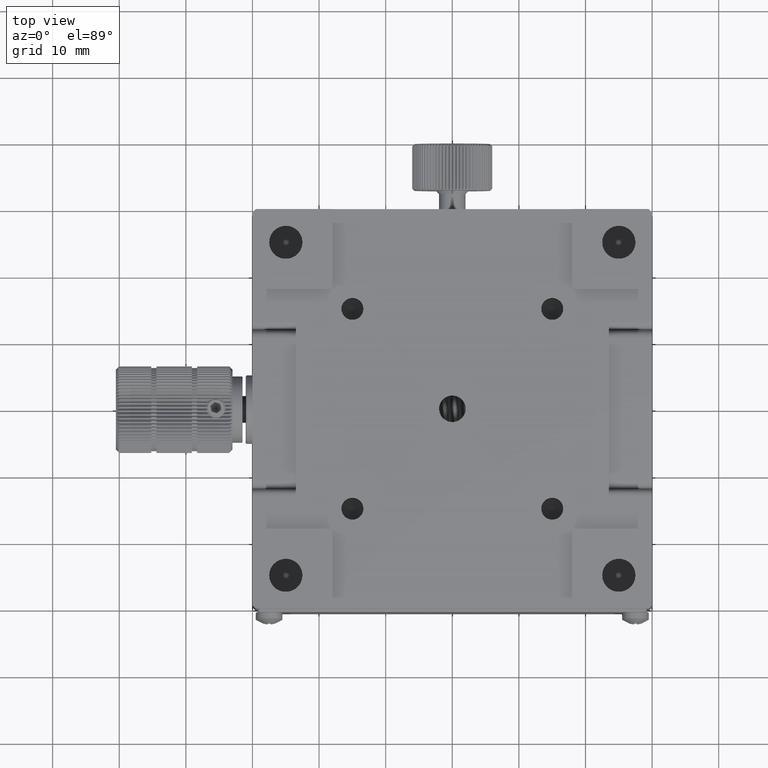
[diagram: clean part render]
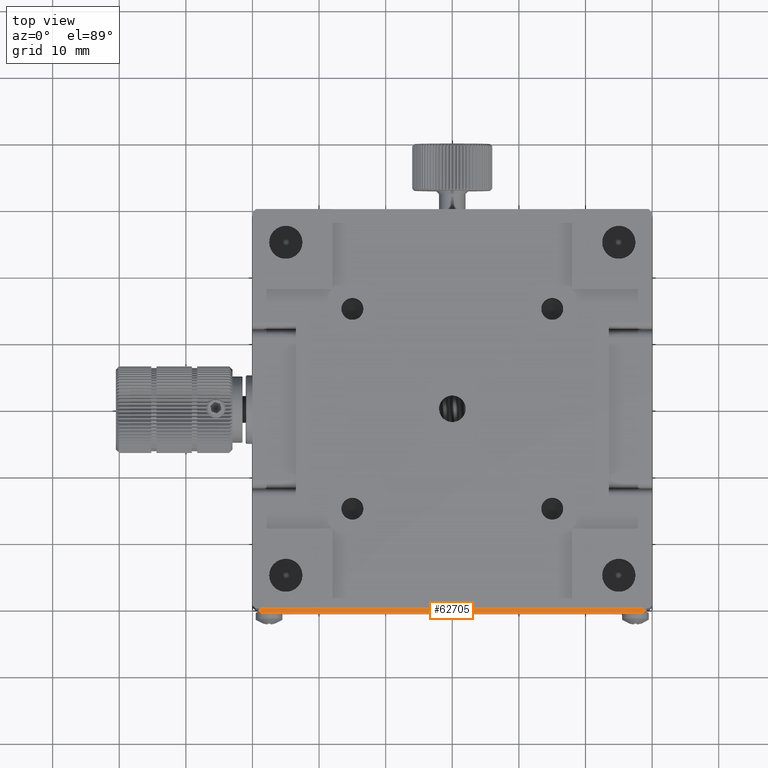
[diagram: same view with one face highlighted and labeled with its STEP entity id]
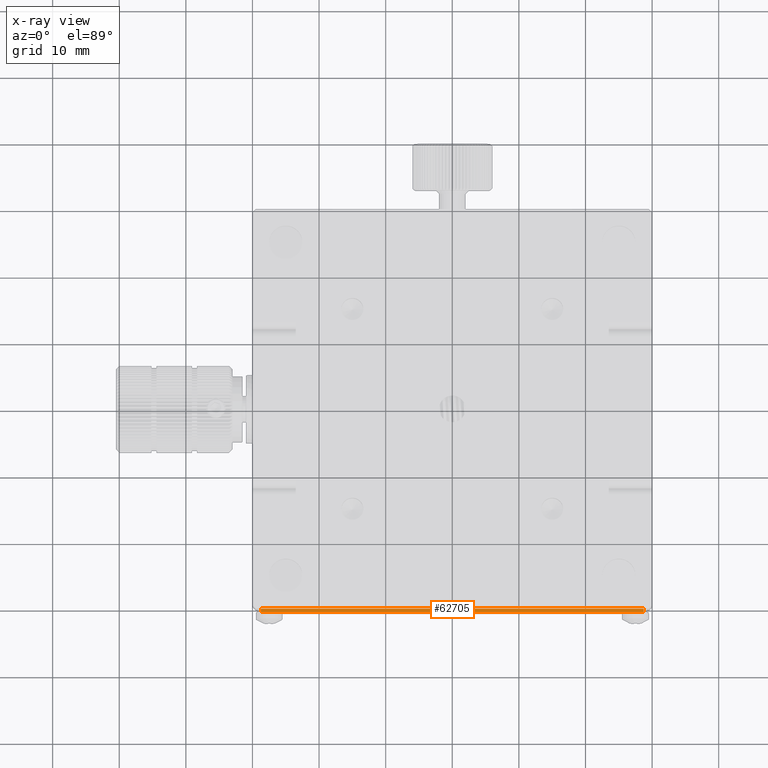
[diagram: x-ray of the same camera — body ghosted, the highlighted face saturated]
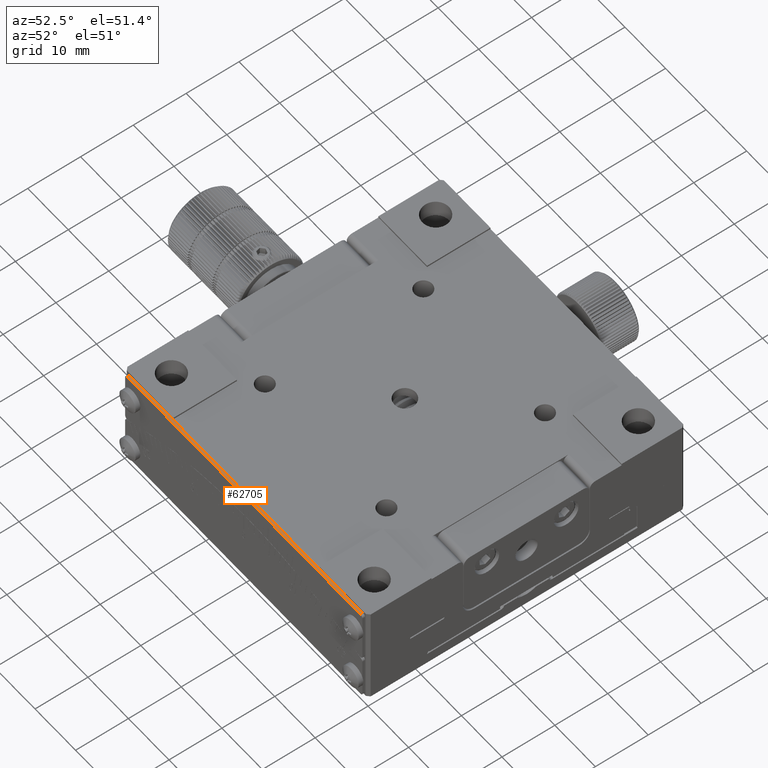
[diagram: same view with one face highlighted and labeled with its STEP entity id]
A machine part, top view. The second image highlights one B-rep face of the part: STEP entity #62705.
The next image is the same camera in x-ray: the body ghosted, the highlighted face saturated — about 0% of this face is hidden behind the body in this view.
A second angle (auxiliary view) of the same face is appended — the face is thin or edge-on in the first view.
In plain terms, the highlighted planar face has unit normal (0, 0, -1).
Its self-contained STEP definition (entity closure, byte-faithful):
#2562 = ORIENTED_EDGE ( 'NONE', *, *, #24040, .F. ) ;
#4781 = CARTESIAN_POINT ( 'NONE',  ( -28.74999999999991473, -30.00000000000038014, 79.54999999999989768 ) ) ;
#6138 = CARTESIAN_POINT ( 'NONE',  ( 28.75000000000008882, -30.00000000000017764, 79.54999999999989768 ) ) ;
#12172 = DIRECTION ( 'NONE',  ( 1.000000000000000000, 3.491481338843133355E-15, 1.219044193948983948E-29 ) ) ;
#12637 = EDGE_CURVE ( 'NONE', #16696, #55758, #23627, .T. ) ;
#12949 = PLANE ( 'NONE',  #22651 ) ;
#13688 = DIRECTION ( 'NONE',  ( 0.000000000000000000, 1.000000000000000000, 3.491481338843133355E-15 ) ) ;
#14823 = VECTOR ( 'NONE', #40201, 1000.000000000000000 ) ;
#16696 = VERTEX_POINT ( 'NONE', #33901 ) ;
#19409 = ORIENTED_EDGE ( 'NONE', *, *, #53562, .F. ) ;
#22651 = AXIS2_PLACEMENT_3D ( 'NONE', #60411, #31392, #13688 ) ;
#23627 = LINE ( 'NONE', #51883, #44329 ) ;
#23897 = VECTOR ( 'NONE', #12172, 1000.000000000000000 ) ;
#24040 = EDGE_CURVE ( 'NONE', #30558, #16696, #45488, .T. ) ;
#25777 = FACE_OUTER_BOUND ( 'NONE', #39444, .T. ) ;
#30558 = VERTEX_POINT ( 'NONE', #40928 ) ;
#31392 = DIRECTION ( 'NONE',  ( 0.000000000000000000, 3.491481338843133355E-15, -1.000000000000000000 ) ) ;
#33298 = LINE ( 'NONE', #49501, #67756 ) ;
#33901 = CARTESIAN_POINT ( 'NONE',  ( -28.74999999999991473, -30.50000000000028066, 79.54999999999989768 ) ) ;
#39399 = LINE ( 'NONE', #63807, #23897 ) ;
#39444 = EDGE_LOOP ( 'NONE', ( #19409, #71357, #44465, #2562 ) ) ;
#40201 = DIRECTION ( 'NONE',  ( -1.000000000000000000, 0.000000000000000000, -0.000000000000000000 ) ) ;
#40928 = CARTESIAN_POINT ( 'NONE',  ( 28.75000000000008882, -30.50000000000018119, 79.54999999999989768 ) ) ;
#44329 = VECTOR ( 'NONE', #63550, 1000.000000000000000 ) ;
#44465 = ORIENTED_EDGE ( 'NONE', *, *, #12637, .F. ) ;
#45488 = LINE ( 'NONE', #68797, #14823 ) ;
#49501 = CARTESIAN_POINT ( 'NONE',  ( 28.75000000000008882, -30.00000000000017764, 79.54999999999989768 ) ) ;
#51883 = CARTESIAN_POINT ( 'NONE',  ( -28.74999999999991473, -30.00000000000038014, 79.54999999999989768 ) ) ;
#53562 = EDGE_CURVE ( 'NONE', #58740, #30558, #33298, .T. ) ;
#55758 = VERTEX_POINT ( 'NONE', #4781 ) ;
#58740 = VERTEX_POINT ( 'NONE', #6138 ) ;
#60411 = CARTESIAN_POINT ( 'NONE',  ( -29.24999999999991473, -30.00000000000038014, 79.54999999999989768 ) ) ;
#60415 = DIRECTION ( 'NONE',  ( 3.491481338843133355E-15, -1.000000000000000000, -3.491481338843133355E-15 ) ) ;
#62705 = ADVANCED_FACE ( 'NONE', ( #25777 ), #12949, .F. ) ;
#63550 = DIRECTION ( 'NONE',  ( 0.000000000000000000, 1.000000000000000000, 3.491481338843133355E-15 ) ) ;
#63807 = CARTESIAN_POINT ( 'NONE',  ( 8.326672684688674053E-14, -30.00000000000027711, 79.54999999999989768 ) ) ;
#67756 = VECTOR ( 'NONE', #60415, 1000.000000000000000 ) ;
#68797 = CARTESIAN_POINT ( 'NONE',  ( -29.24999999999991473, -30.50000000000018474, 79.54999999999989768 ) ) ;
#71357 = ORIENTED_EDGE ( 'NONE', *, *, #71901, .F. ) ;
#71901 = EDGE_CURVE ( 'NONE', #55758, #58740, #39399, .T. ) ;